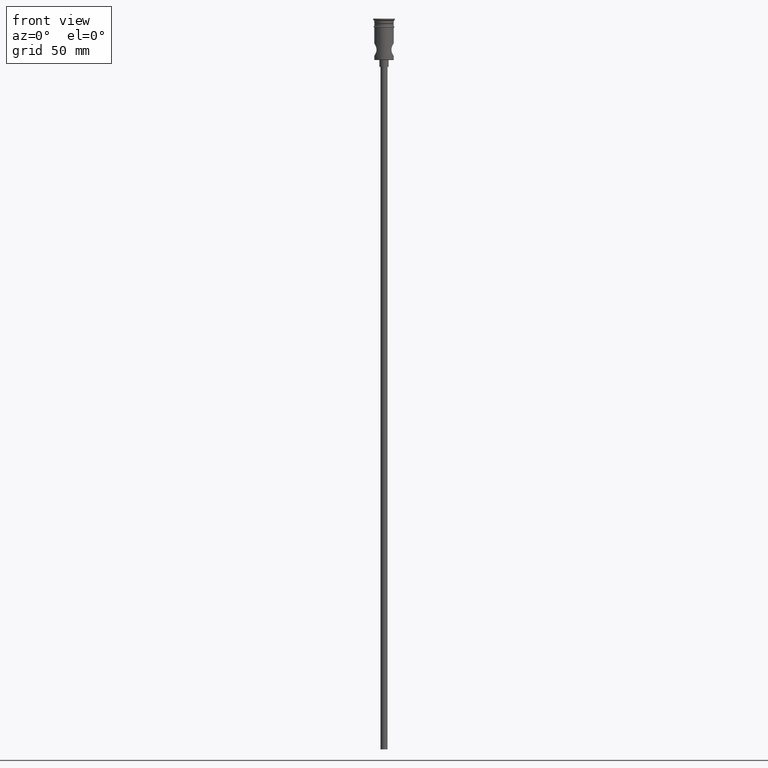
[diagram: clean part render]
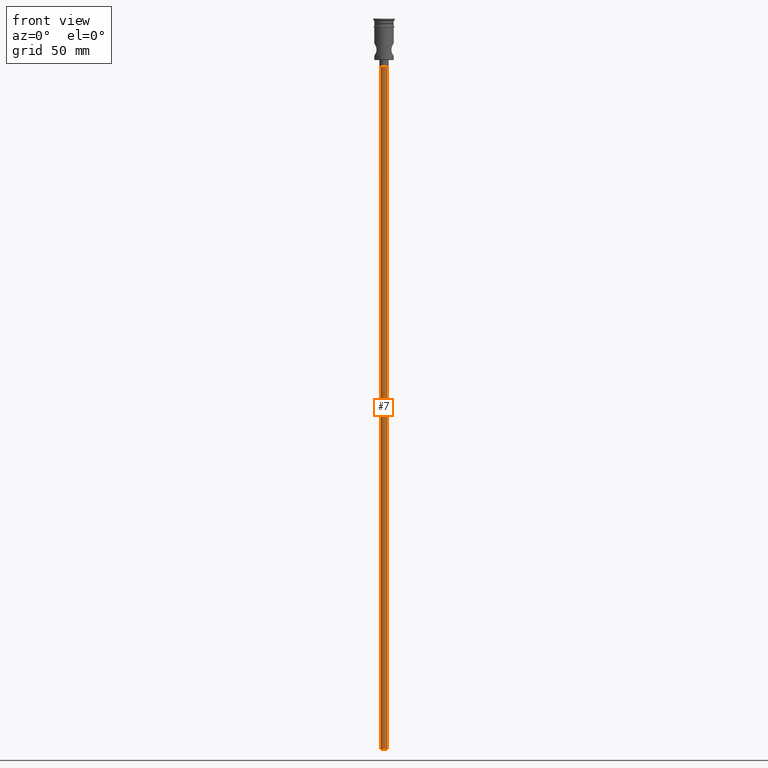
[diagram: same view with one face highlighted and labeled with its STEP entity id]
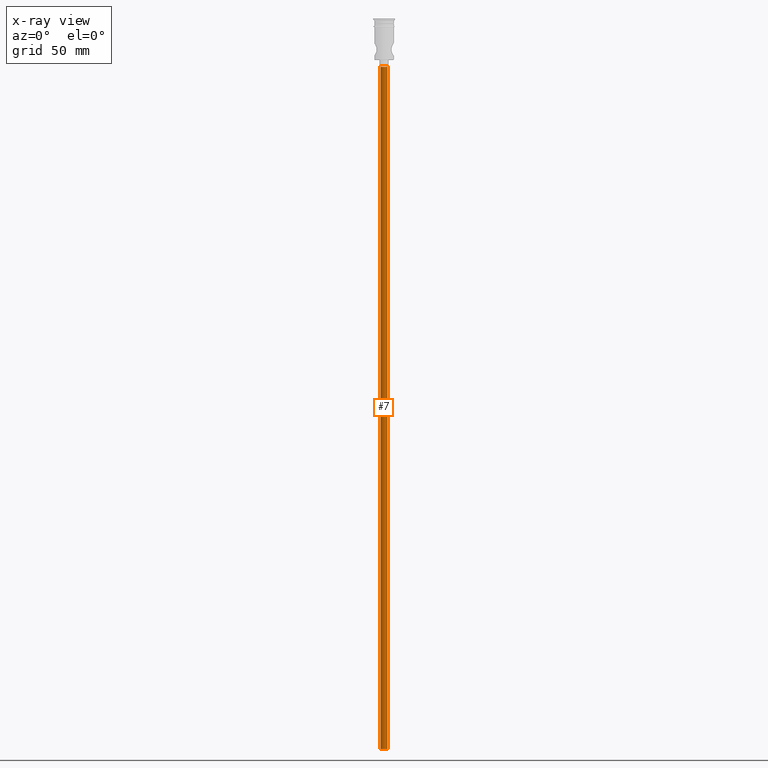
[diagram: x-ray of the same camera — body ghosted, the highlighted face saturated]
A machine part, front view. The second image highlights one B-rep face of the part: STEP entity #7.
The next image is the same camera in x-ray: the body ghosted, the highlighted face saturated — about 0% of this face is hidden behind the body in this view.
In plain terms, the highlighted cylindrical surface (edge-blend (fillet) strip) has radius 1.5 mm, axis along (-0, -0, 1).
Its self-contained STEP definition (entity closure, byte-faithful):
#4 = CARTESIAN_POINT ( 'NONE',  ( 0.000000000000000000, 0.000000000000000000, -20.99999999999999645 ) ) ;
#7 = ADVANCED_FACE ( 'NONE', ( #929 ), #821, .T. ) ;
#21 = CIRCLE ( 'NONE', #587, 1.500000000000000222 ) ;
#33 = DIRECTION ( 'NONE',  ( -0.000000000000000000, -0.000000000000000000, 1.000000000000000000 ) ) ;
#135 = VERTEX_POINT ( 'NONE', #311 ) ;
#171 = CARTESIAN_POINT ( 'NONE',  ( 0.000000000000000000, 0.000000000000000000, -318.0000000000000000 ) ) ;
#274 = DIRECTION ( 'NONE',  ( -1.000000000000000000, 0.000000000000000000, 0.000000000000000000 ) ) ;
#277 = EDGE_CURVE ( 'NONE', #1339, #401, #437, .T. ) ;
#311 = CARTESIAN_POINT ( 'NONE',  ( 1.500000000000000222, 0.000000000000000000, -318.0000000000000000 ) ) ;
#324 = CARTESIAN_POINT ( 'NONE',  ( -1.500000000000000222, 1.836970198721030181E-16, -318.0000000000000000 ) ) ;
#327 = VERTEX_POINT ( 'NONE', #565 ) ;
#339 = DIRECTION ( 'NONE',  ( 0.000000000000000000, 0.000000000000000000, -1.000000000000000000 ) ) ;
#388 = DIRECTION ( 'NONE',  ( 0.000000000000000000, 0.000000000000000000, -1.000000000000000000 ) ) ;
#401 = VERTEX_POINT ( 'NONE', #1137 ) ;
#437 = LINE ( 'NONE', #324, #790 ) ;
#502 = CARTESIAN_POINT ( 'NONE',  ( -1.500000000000000222, 1.836970198721030181E-16, -318.0000000000000000 ) ) ;
#565 = CARTESIAN_POINT ( 'NONE',  ( 1.500000000000000222, 0.000000000000000000, -20.99999999999999645 ) ) ;
#587 = AXIS2_PLACEMENT_3D ( 'NONE', #171, #388, #274 ) ;
#625 = AXIS2_PLACEMENT_3D ( 'NONE', #1254, #655, #1228 ) ;
#639 = ORIENTED_EDGE ( 'NONE', *, *, #1021, .F. ) ;
#655 = DIRECTION ( 'NONE',  ( -0.000000000000000000, -0.000000000000000000, 1.000000000000000000 ) ) ;
#699 = VECTOR ( 'NONE', #33, 1000.000000000000000 ) ;
#718 = ORIENTED_EDGE ( 'NONE', *, *, #1298, .T. ) ;
#790 = VECTOR ( 'NONE', #1110, 1000.000000000000000 ) ;
#819 = ORIENTED_EDGE ( 'NONE', *, *, #277, .F. ) ;
#821 = CYLINDRICAL_SURFACE ( 'NONE', #625, 1.500000000000000222 ) ;
#886 = EDGE_CURVE ( 'NONE', #135, #327, #1361, .T. ) ;
#890 = DIRECTION ( 'NONE',  ( -1.000000000000000000, 0.000000000000000000, 0.000000000000000000 ) ) ;
#929 = FACE_OUTER_BOUND ( 'NONE', #1317, .T. ) ;
#1021 = EDGE_CURVE ( 'NONE', #135, #1339, #21, .T. ) ;
#1032 = CARTESIAN_POINT ( 'NONE',  ( 1.500000000000000222, 0.000000000000000000, -318.0000000000000000 ) ) ;
#1058 = ORIENTED_EDGE ( 'NONE', *, *, #886, .T. ) ;
#1110 = DIRECTION ( 'NONE',  ( -0.000000000000000000, -0.000000000000000000, 1.000000000000000000 ) ) ;
#1137 = CARTESIAN_POINT ( 'NONE',  ( -1.500000000000000222, 1.836970198721030181E-16, -20.99999999999999645 ) ) ;
#1228 = DIRECTION ( 'NONE',  ( 1.000000000000000000, 0.000000000000000000, 0.000000000000000000 ) ) ;
#1254 = CARTESIAN_POINT ( 'NONE',  ( 0.000000000000000000, 0.000000000000000000, -318.0000000000000000 ) ) ;
#1298 = EDGE_CURVE ( 'NONE', #327, #401, #1373, .T. ) ;
#1317 = EDGE_LOOP ( 'NONE', ( #819, #639, #1058, #718 ) ) ;
#1339 = VERTEX_POINT ( 'NONE', #502 ) ;
#1345 = AXIS2_PLACEMENT_3D ( 'NONE', #4, #339, #890 ) ;
#1361 = LINE ( 'NONE', #1032, #699 ) ;
#1373 = CIRCLE ( 'NONE', #1345, 1.500000000000000222 ) ;